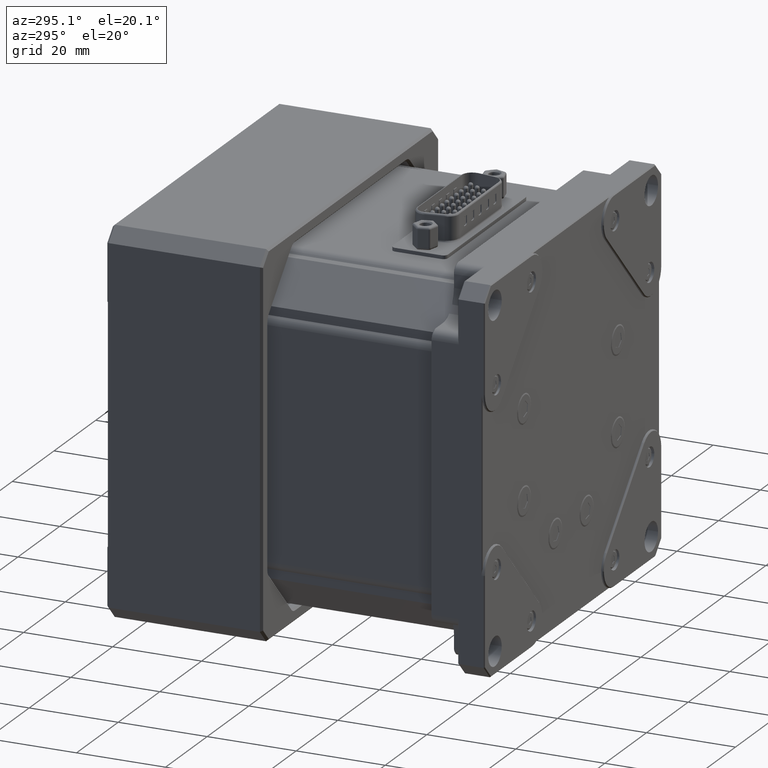
[diagram: clean part render]
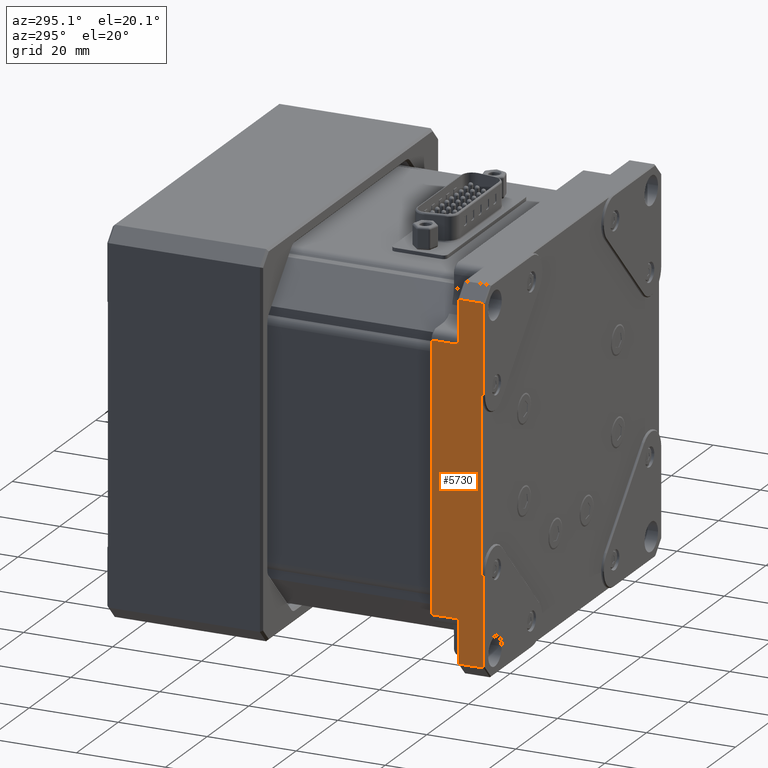
[diagram: same view with one face highlighted and labeled with its STEP entity id]
A machine part, auxiliary view. The second image highlights one B-rep face of the part: STEP entity #5730.
In plain terms, the highlighted planar face has unit normal (1, 0, -0).
Its self-contained STEP definition (entity closure, byte-faithful):
#357 = EDGE_CURVE ( 'NONE', #44067, #10514, #45668, .T. ) ;
#939 = CARTESIAN_POINT ( 'NONE',  ( 47.67449350438039346, 0.2000000000000175249, 1.000000000000021982 ) ) ;
#1074 = DIRECTION ( 'NONE',  ( -2.498001805406610105E-16, 1.000000000000000000, -1.103725197610289945E-16 ) ) ;
#1661 = CARTESIAN_POINT ( 'NONE',  ( 47.67449350438039346, 12.00000000000000000, -81.00000000000000000 ) ) ;
#1985 = CARTESIAN_POINT ( 'NONE',  ( 47.67449350438039346, 12.00000000000000000, 1.000000000000021982 ) ) ;
#2802 = CARTESIAN_POINT ( 'NONE',  ( 47.67449350438039346, 5.799999999999999822, 1.000000000000021982 ) ) ;
#3067 = EDGE_CURVE ( 'NONE', #35940, #11729, #19974, .T. ) ;
#3409 = DIRECTION ( 'NONE',  ( -3.861978163544035151E-16, -1.103725197610303873E-16, -1.000000000000000000 ) ) ;
#3674 = DIRECTION ( 'NONE',  ( -2.498001805406610105E-16, 1.000000000000000000, -1.103725197610289945E-16 ) ) ;
#4228 = VECTOR ( 'NONE', #3409, 1000.000000000000000 ) ;
#4575 = CARTESIAN_POINT ( 'NONE',  ( 47.67449350438039346, 12.00000000000000000, -68.25000000000000000 ) ) ;
#5155 = VERTEX_POINT ( 'NONE', #44752 ) ;
#5730 = ADVANCED_FACE ( 'NONE', ( #36503 ), #9255, .F. ) ;
#5827 = DIRECTION ( 'NONE',  ( 3.861978163544035151E-16, 1.103725197610303873E-16, 1.000000000000000000 ) ) ;
#6301 = CARTESIAN_POINT ( 'NONE',  ( 47.67449350438039346, 0.6999999999999999556, -18.92893218813449963 ) ) ;
#6806 = CARTESIAN_POINT ( 'NONE',  ( 47.67449350438039346, 11.79999999999999893, -8.750000000000000000 ) ) ;
#6867 = VERTEX_POINT ( 'NONE', #2802 ) ;
#8146 = AXIS2_PLACEMENT_3D ( 'NONE', #1661, #23343, #19188 ) ;
#8397 = CARTESIAN_POINT ( 'NONE',  ( 47.67449350438039346, 0.2000000000000155265, -18.92893218813449963 ) ) ;
#8863 = ORIENTED_EDGE ( 'NONE', *, *, #37425, .T. ) ;
#9255 = PLANE ( 'NONE',  #8146 ) ;
#10514 = VERTEX_POINT ( 'NONE', #44299 ) ;
#10600 = ORIENTED_EDGE ( 'NONE', *, *, #21729, .T. ) ;
#10783 = VECTOR ( 'NONE', #5827, 1000.000000000000000 ) ;
#10849 = EDGE_CURVE ( 'NONE', #11729, #35257, #12983, .T. ) ;
#11088 = CARTESIAN_POINT ( 'NONE',  ( 47.67449350438039346, 12.00000000000000000, -58.07106781186550393 ) ) ;
#11266 = ORIENTED_EDGE ( 'NONE', *, *, #357, .T. ) ;
#11507 = VECTOR ( 'NONE', #16253, 1000.000000000000000 ) ;
#11729 = VERTEX_POINT ( 'NONE', #6301 ) ;
#12983 = LINE ( 'NONE', #40936, #26109 ) ;
#13824 = LINE ( 'NONE', #35755, #25054 ) ;
#14028 = CARTESIAN_POINT ( 'NONE',  ( 47.67449350438039346, 5.799999999999999822, -81.00000000000000000 ) ) ;
#15467 = VECTOR ( 'NONE', #38812, 1000.000000000000000 ) ;
#15666 = ORIENTED_EDGE ( 'NONE', *, *, #41530, .T. ) ;
#16253 = DIRECTION ( 'NONE',  ( 3.861978163544035151E-16, 1.103725197610303873E-16, 1.000000000000000000 ) ) ;
#16958 = CARTESIAN_POINT ( 'NONE',  ( 47.67449350438039346, 0.6999999999999899636, -81.00000000000000000 ) ) ;
#17432 = DIRECTION ( 'NONE',  ( -3.861978163544035151E-16, -1.103725197610303873E-16, -1.000000000000000000 ) ) ;
#17937 = VECTOR ( 'NONE', #34053, 1000.000000000000000 ) ;
#18464 = VERTEX_POINT ( 'NONE', #6806 ) ;
#19018 = EDGE_CURVE ( 'NONE', #27782, #18464, #13824, .T. ) ;
#19188 = DIRECTION ( 'NONE',  ( -3.861978163544035151E-16, 0.000000000000000000, -1.000000000000000000 ) ) ;
#19660 = CARTESIAN_POINT ( 'NONE',  ( 47.67449350438039346, 12.00000000000000000, -78.00000000000000000 ) ) ;
#19960 = CARTESIAN_POINT ( 'NONE',  ( 47.67449350438039346, 0.2000000000000175249, 1.000000000000021982 ) ) ;
#19974 = LINE ( 'NONE', #16958, #17937 ) ;
#21292 = CARTESIAN_POINT ( 'NONE',  ( 47.67449350438039346, 5.799999999999999822, -8.750000000000000000 ) ) ;
#21729 = EDGE_CURVE ( 'NONE', #43926, #6867, #25767, .T. ) ;
#22015 = VECTOR ( 'NONE', #26355, 1000.000000000000000 ) ;
#22720 = EDGE_CURVE ( 'NONE', #10514, #5155, #23130, .T. ) ;
#23130 = LINE ( 'NONE', #19660, #22015 ) ;
#23307 = CARTESIAN_POINT ( 'NONE',  ( 47.67449350438039346, 5.799999999999999822, -68.25000000000000000 ) ) ;
#23343 = DIRECTION ( 'NONE',  ( 1.000000000000000000, 2.498001805406610105E-16, -3.861978163544035151E-16 ) ) ;
#23364 = LINE ( 'NONE', #33993, #10783 ) ;
#24005 = VERTEX_POINT ( 'NONE', #36697 ) ;
#24173 = ORIENTED_EDGE ( 'NONE', *, *, #34633, .T. ) ;
#24627 = CARTESIAN_POINT ( 'NONE',  ( 47.67449350438039346, 5.799999999999999822, -8.750000000000000000 ) ) ;
#24814 = CARTESIAN_POINT ( 'NONE',  ( 47.67449350438039346, 11.79999999999999893, -81.00000000000000000 ) ) ;
#25054 = VECTOR ( 'NONE', #3674, 1000.000000000000000 ) ;
#25390 = ORIENTED_EDGE ( 'NONE', *, *, #3067, .T. ) ;
#25767 = LINE ( 'NONE', #1985, #43344 ) ;
#26021 = DIRECTION ( 'NONE',  ( 2.498001805406610105E-16, -1.000000000000000000, 1.103725197610289945E-16 ) ) ;
#26109 = VECTOR ( 'NONE', #26851, 1000.000000000000000 ) ;
#26355 = DIRECTION ( 'NONE',  ( 2.498001805406610105E-16, -1.000000000000000000, 1.103725197610289945E-16 ) ) ;
#26455 = VERTEX_POINT ( 'NONE', #29171 ) ;
#26851 = DIRECTION ( 'NONE',  ( 2.498001805406610105E-16, -1.000000000000000000, 1.103725197610289945E-16 ) ) ;
#27186 = LINE ( 'NONE', #24627, #30614 ) ;
#27380 = EDGE_CURVE ( 'NONE', #18464, #24005, #35669, .T. ) ;
#27782 = VERTEX_POINT ( 'NONE', #21292 ) ;
#28820 = LINE ( 'NONE', #4575, #38925 ) ;
#29171 = CARTESIAN_POINT ( 'NONE',  ( 47.67449350438039346, 0.2000000000000000111, -58.07106781186550393 ) ) ;
#30614 = VECTOR ( 'NONE', #38721, 1000.000000000000000 ) ;
#32117 = EDGE_CURVE ( 'NONE', #26455, #35940, #42497, .T. ) ;
#32953 = ORIENTED_EDGE ( 'NONE', *, *, #27380, .T. ) ;
#33993 = CARTESIAN_POINT ( 'NONE',  ( 47.67449350438039346, 0.2000000000000000111, -58.07106781186550393 ) ) ;
#34053 = DIRECTION ( 'NONE',  ( 3.861978163544035151E-16, 1.103725197610303873E-16, 1.000000000000000000 ) ) ;
#34426 = ORIENTED_EDGE ( 'NONE', *, *, #43193, .T. ) ;
#34633 = EDGE_CURVE ( 'NONE', #6867, #27782, #27186, .T. ) ;
#34660 = ORIENTED_EDGE ( 'NONE', *, *, #32117, .T. ) ;
#35257 = VERTEX_POINT ( 'NONE', #8397 ) ;
#35669 = LINE ( 'NONE', #24814, #44807 ) ;
#35755 = CARTESIAN_POINT ( 'NONE',  ( 47.67449350438039346, 12.00000000000000000, -8.750000000000000000 ) ) ;
#35940 = VERTEX_POINT ( 'NONE', #39269 ) ;
#36503 = FACE_OUTER_BOUND ( 'NONE', #44743, .T. ) ;
#36697 = CARTESIAN_POINT ( 'NONE',  ( 47.67449350438039346, 11.79999999999999893, -68.25000000000000000 ) ) ;
#37425 = EDGE_CURVE ( 'NONE', #24005, #44067, #28820, .T. ) ;
#38721 = DIRECTION ( 'NONE',  ( -3.861978163544035151E-16, -1.103725197610303873E-16, -1.000000000000000000 ) ) ;
#38812 = DIRECTION ( 'NONE',  ( -2.498001805406610105E-16, 1.000000000000000000, -1.103725197610289945E-16 ) ) ;
#38925 = VECTOR ( 'NONE', #26021, 1000.000000000000000 ) ;
#39269 = CARTESIAN_POINT ( 'NONE',  ( 47.67449350438039346, 0.6999999999999999556, -58.07106781186550393 ) ) ;
#40936 = CARTESIAN_POINT ( 'NONE',  ( 47.67449350438039346, 12.00000000000000000, -18.92893218813449963 ) ) ;
#40967 = LINE ( 'NONE', #19960, #11507 ) ;
#41412 = ORIENTED_EDGE ( 'NONE', *, *, #22720, .T. ) ;
#41530 = EDGE_CURVE ( 'NONE', #5155, #26455, #23364, .T. ) ;
#42497 = LINE ( 'NONE', #11088, #15467 ) ;
#42504 = ORIENTED_EDGE ( 'NONE', *, *, #10849, .T. ) ;
#43193 = EDGE_CURVE ( 'NONE', #35257, #43926, #40967, .T. ) ;
#43344 = VECTOR ( 'NONE', #1074, 1000.000000000000000 ) ;
#43926 = VERTEX_POINT ( 'NONE', #939 ) ;
#44067 = VERTEX_POINT ( 'NONE', #23307 ) ;
#44287 = ORIENTED_EDGE ( 'NONE', *, *, #19018, .T. ) ;
#44299 = CARTESIAN_POINT ( 'NONE',  ( 47.67449350438039346, 5.799999999999999822, -78.00000000000000000 ) ) ;
#44743 = EDGE_LOOP ( 'NONE', ( #41412, #15666, #34660, #25390, #42504, #34426, #10600, #24173, #44287, #32953, #8863, #11266 ) ) ;
#44752 = CARTESIAN_POINT ( 'NONE',  ( 47.67449350438039346, 0.1999999999999970135, -78.00000000000000000 ) ) ;
#44807 = VECTOR ( 'NONE', #17432, 1000.000000000000000 ) ;
#45668 = LINE ( 'NONE', #14028, #4228 ) ;